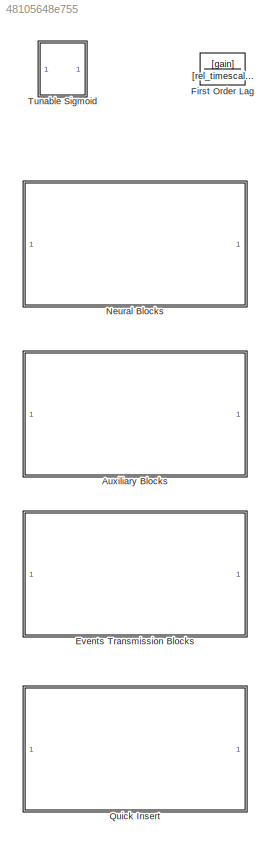
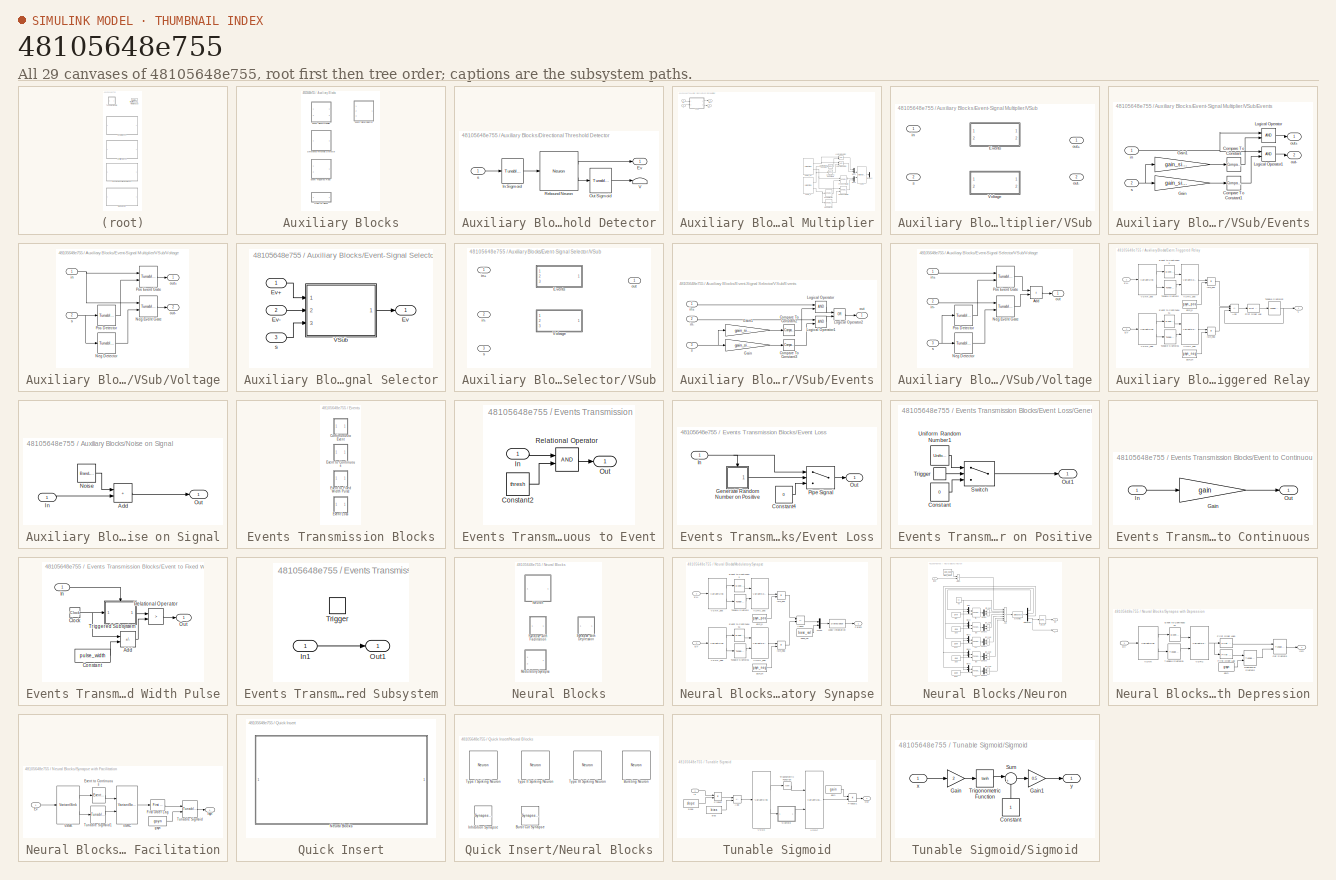
[diagram: thumbnail index - all 29 canvases of the model, root first then tree order]
MODEL slx_48105648e755
KIND library
CONFIG AbsTol = auto
CONFIG EnableMultiTasking = off
CONFIG FixedStep = auto
CONFIG MaxStep = auto
CONFIG MinStep = auto
CONFIG RelTol = 1e-3
CONFIG SampleTimeConstraint = Unconstrained
CONFIG SolverName = VariableStepAuto
CONFIG StartTime = 0.0
CONFIG StopTime = 10.0
BLOCK [SubSystem] Auxiliary Blocks
  Ports = []
  RequestExecContextInheritance = off
BLOCK [SubSystem] Auxiliary Blocks/Directional Threshold Detector
  Ports = [1, 1]
  RequestExecContextInheritance = off
BLOCK [Outport] Auxiliary Blocks/Directional Threshold Detector/Ev
BLOCK [Reference] Auxiliary Blocks/Directional Threshold Detector/In Sigmoid  REF=$bdroot/Tunable Sigmoid
  Ports = [1, 1]
  SourceBlock = $bdroot/Tunable Sigmoid
  SourceType = Tunable Sigmoid
BLOCK [Reference] Auxiliary Blocks/Directional Threshold Detector/Out Sigmoid  REF=$bdroot/Tunable Sigmoid
  Commented = on
  Ports = [1, 1]
  SourceBlock = $bdroot/Tunable Sigmoid
  SourceType = Tunable Sigmoid
BLOCK [Reference] Auxiliary Blocks/Directional Threshold Detector/Rebound Neuron  REF=$bdroot/Neural Blocks/Neuron
  Ports = [1, 2]
  SourceBlock = $bdroot/Neural Blocks/Neuron
  SourceType = Neuron
BLOCK [Terminator] Auxiliary Blocks/Directional Threshold Detector/V
BLOCK [Inport] Auxiliary Blocks/Directional Threshold Detector/s
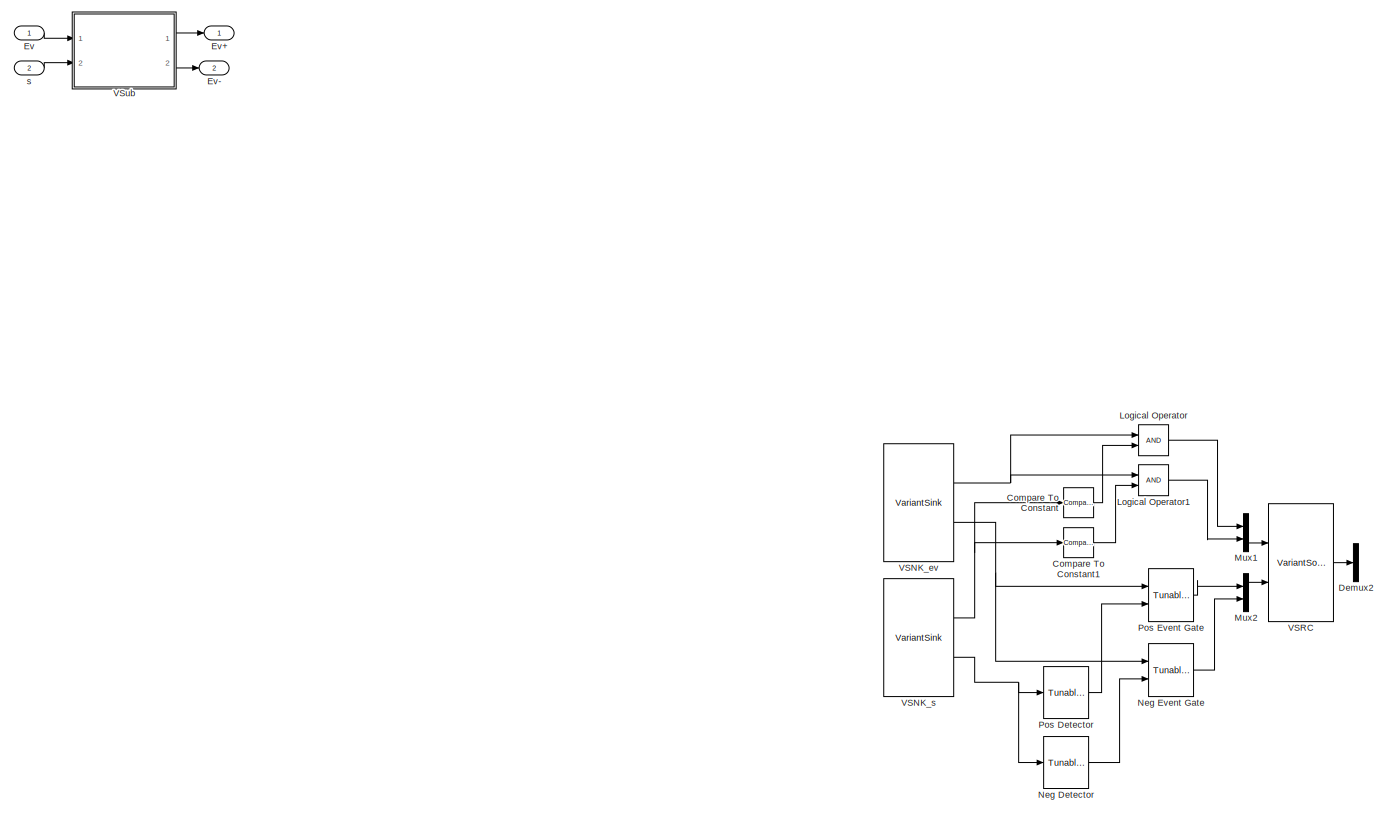
[diagram: Auxiliary Blocks/Event-Signal Multiplier - part 1/1, most of the canvas]
BLOCK [SubSystem] Auxiliary Blocks/Event-Signal Multiplier
  Ports = [2, 2]
  RequestExecContextInheritance = off
BLOCK [Reference] Auxiliary Blocks/Event-Signal Multiplier/Compare To Constant  REF=simulink/Logic and Bit
Operations/Compare
To Constant
  Commented = on
  Ports = [1, 1]
  SourceBlock = simulink/Logic and Bit\nOperations/Compare\nTo Constant
  SourceProductBaseCode = SL
  SourceType = Compare To Constant
BLOCK [Reference] Auxiliary Blocks/Event-Signal Multiplier/Compare To Constant1  REF=simulink/Logic and Bit
Operations/Compare
To Constant
  Commented = on
  Ports = [1, 1]
  SourceBlock = simulink/Logic and Bit\nOperations/Compare\nTo Constant
  SourceProductBaseCode = SL
  SourceType = Compare To Constant
BLOCK [Demux] Auxiliary Blocks/Event-Signal Multiplier/Demux2
  Commented = on
  Outputs = 2
  Ports = [1, 2]
BLOCK [Inport] Auxiliary Blocks/Event-Signal Multiplier/Ev
BLOCK [Outport] Auxiliary Blocks/Event-Signal Multiplier/Ev+
BLOCK [Outport] Auxiliary Blocks/Event-Signal Multiplier/Ev-
  Port = 2
BLOCK [Logic] Auxiliary Blocks/Event-Signal Multiplier/Logical Operator
  AllPortsSameDT = off
  Commented = on
  OutDataTypeStr = boolean
  Ports = [2, 1]
BLOCK [Logic] Auxiliary Blocks/Event-Signal Multiplier/Logical Operator1
  AllPortsSameDT = off
  Commented = on
  OutDataTypeStr = boolean
  Ports = [2, 1]
BLOCK [Mux] Auxiliary Blocks/Event-Signal Multiplier/Mux1
  Commented = on
  DisplayOption = bar
  Inputs = 2
  Ports = [2, 1]
BLOCK [Mux] Auxiliary Blocks/Event-Signal Multiplier/Mux2
  Commented = on
  DisplayOption = bar
  Inputs = 2
  Ports = [2, 1]
BLOCK [Reference] Auxiliary Blocks/Event-Signal Multiplier/Neg Detector  REF=$bdroot/Tunable Sigmoid
  Commented = on
  Ports = [1, 1]
  SourceBlock = $bdroot/Tunable Sigmoid
  SourceType = Tunable Sigmoid
BLOCK [Reference] Auxiliary Blocks/Event-Signal Multiplier/Neg Event Gate  REF=$bdroot/Tunable Sigmoid
  Commented = on
  Ports = [2, 1]
  SourceBlock = $bdroot/Tunable Sigmoid
  SourceType = Tunable Sigmoid
BLOCK [Reference] Auxiliary Blocks/Event-Signal Multiplier/Pos Detector  REF=$bdroot/Tunable Sigmoid
  Commented = on
  Ports = [1, 1]
  SourceBlock = $bdroot/Tunable Sigmoid
  SourceType = Tunable Sigmoid
BLOCK [Reference] Auxiliary Blocks/Event-Signal Multiplier/Pos Event Gate  REF=$bdroot/Tunable Sigmoid
  Commented = on
  Ports = [2, 1]
  SourceBlock = $bdroot/Tunable Sigmoid
  SourceType = Tunable Sigmoid
BLOCK [VariantSink] Auxiliary Blocks/Event-Signal Multiplier/VSNK_ev
  Commented = on
  LabelModeActiveChoice = Events
  Ports = [1, 2]
  ShowConditionOnBlock = on
  VariantControlMode = label
BLOCK [VariantSink] Auxiliary Blocks/Event-Signal Multiplier/VSNK_s
  Commented = on
  LabelModeActiveChoice = Events
  Ports = [1, 2]
  ShowConditionOnBlock = on
  VariantControlMode = label
BLOCK [VariantSource] Auxiliary Blocks/Event-Signal Multiplier/VSRC
  Commented = on
  LabelModeActiveChoice = Events
  Ports = [2, 1]
  ShowConditionOnBlock = on
  VariantControlMode = label
BLOCK [SubSystem] Auxiliary Blocks/Event-Signal Multiplier/VSub
  LabelModeActiveChoice = Events
  Ports = [2, 2]
  RequestExecContextInheritance = off
  Variant = on
  VariantControlMode = label
BLOCK [SubSystem] Auxiliary Blocks/Event-Signal Multiplier/VSub/Events
  Ports = [2, 2]
  RequestExecContextInheritance = off
  VariantControl = Events
BLOCK [Reference] Auxiliary Blocks/Event-Signal Multiplier/VSub/Events/Compare To Constant  REF=simulink/Logic and Bit
Operations/Compare
To Constant
  Ports = [1, 1]
  SourceBlock = simulink/Logic and Bit\nOperations/Compare\nTo Constant
  SourceProductBaseCode = SL
  SourceType = Compare To Constant
BLOCK [Reference] Auxiliary Blocks/Event-Signal Multiplier/VSub/Events/Compare To Constant1  REF=simulink/Logic and Bit
Operations/Compare
To Constant
  Ports = [1, 1]
  SourceBlock = simulink/Logic and Bit\nOperations/Compare\nTo Constant
  SourceProductBaseCode = SL
  SourceType = Compare To Constant
BLOCK [Gain] Auxiliary Blocks/Event-Signal Multiplier/VSub/Events/Gain
  Gain = gain_signal_neg
BLOCK [Gain] Auxiliary Blocks/Event-Signal Multiplier/VSub/Events/Gain1
  Gain = gain_signal_pos
BLOCK [Logic] Auxiliary Blocks/Event-Signal Multiplier/VSub/Events/Logical Operator
  AllPortsSameDT = off
  OutDataTypeStr = boolean
  Ports = [2, 1]
BLOCK [Logic] Auxiliary Blocks/Event-Signal Multiplier/VSub/Events/Logical Operator1
  AllPortsSameDT = off
  OutDataTypeStr = boolean
  Ports = [2, 1]
BLOCK [Inport] Auxiliary Blocks/Event-Signal Multiplier/VSub/Events/in
BLOCK [Outport] Auxiliary Blocks/Event-Signal Multiplier/VSub/Events/out+
BLOCK [Outport] Auxiliary Blocks/Event-Signal Multiplier/VSub/Events/out-
  Port = 2
BLOCK [Inport] Auxiliary Blocks/Event-Signal Multiplier/VSub/Events/s
  Port = 2
BLOCK [SubSystem] Auxiliary Blocks/Event-Signal Multiplier/VSub/Voltage
  Ports = [2, 2]
  RequestExecContextInheritance = off
  VariantControl = Voltage
BLOCK [Reference] Auxiliary Blocks/Event-Signal Multiplier/VSub/Voltage/Neg Detector  REF=$bdroot/Tunable Sigmoid
  Ports = [1, 1]
  SourceBlock = $bdroot/Tunable Sigmoid
  SourceType = Tunable Sigmoid
BLOCK [Reference] Auxiliary Blocks/Event-Signal Multiplier/VSub/Voltage/Neg Event Gate  REF=$bdroot/Tunable Sigmoid
  Ports = [2, 1]
  SourceBlock = $bdroot/Tunable Sigmoid
  SourceType = Tunable Sigmoid
BLOCK [Reference] Auxiliary Blocks/Event-Signal Multiplier/VSub/Voltage/Pos Detector  REF=$bdroot/Tunable Sigmoid
  Ports = [1, 1]
  SourceBlock = $bdroot/Tunable Sigmoid
  SourceType = Tunable Sigmoid
BLOCK [Reference] Auxiliary Blocks/Event-Signal Multiplier/VSub/Voltage/Pos Event Gate  REF=$bdroot/Tunable Sigmoid
  Ports = [2, 1]
  SourceBlock = $bdroot/Tunable Sigmoid
  SourceType = Tunable Sigmoid
BLOCK [Inport] Auxiliary Blocks/Event-Signal Multiplier/VSub/Voltage/in
BLOCK [Outport] Auxiliary Blocks/Event-Signal Multiplier/VSub/Voltage/out+
BLOCK [Outport] Auxiliary Blocks/Event-Signal Multiplier/VSub/Voltage/out-
  Port = 2
BLOCK [Inport] Auxiliary Blocks/Event-Signal Multiplier/VSub/Voltage/s
  Port = 2
BLOCK [Inport] Auxiliary Blocks/Event-Signal Multiplier/VSub/in
BLOCK [Outport] Auxiliary Blocks/Event-Signal Multiplier/VSub/out+
BLOCK [Outport] Auxiliary Blocks/Event-Signal Multiplier/VSub/out-
  Port = 2
BLOCK [Inport] Auxiliary Blocks/Event-Signal Multiplier/VSub/s
  Port = 2
BLOCK [Inport] Auxiliary Blocks/Event-Signal Multiplier/s
  Port = 2
BLOCK [SubSystem] Auxiliary Blocks/Event-Signal Selector
  Ports = [3, 1]
  RequestExecContextInheritance = off
BLOCK [Outport] Auxiliary Blocks/Event-Signal Selector/Ev
BLOCK [Inport] Auxiliary Blocks/Event-Signal Selector/Ev+
BLOCK [Inport] Auxiliary Blocks/Event-Signal Selector/Ev-
  Port = 2
BLOCK [SubSystem] Auxiliary Blocks/Event-Signal Selector/VSub
  LabelModeActiveChoice = Events
  Ports = [3, 1]
  RequestExecContextInheritance = off
  Variant = on
  VariantControlMode = label
BLOCK [SubSystem] Auxiliary Blocks/Event-Signal Selector/VSub/Events
  Ports = [3, 1]
  RequestExecContextInheritance = off
  VariantControl = Events
BLOCK [Reference] Auxiliary Blocks/Event-Signal Selector/VSub/Events/Compare To Constant2  REF=simulink/Logic and Bit
Operations/Compare
To Constant
  Ports = [1, 1]
  SourceBlock = simulink/Logic and Bit\nOperations/Compare\nTo Constant
  SourceProductBaseCode = SL
  SourceType = Compare To Constant
BLOCK [Reference] Auxiliary Blocks/Event-Signal Selector/VSub/Events/Compare To Constant3  REF=simulink/Logic and Bit
Operations/Compare
To Constant
  Ports = [1, 1]
  SourceBlock = simulink/Logic and Bit\nOperations/Compare\nTo Constant
  SourceProductBaseCode = SL
  SourceType = Compare To Constant
BLOCK [Gain] Auxiliary Blocks/Event-Signal Selector/VSub/Events/Gain
  Gain = gain_signal_neg
BLOCK [Gain] Auxiliary Blocks/Event-Signal Selector/VSub/Events/Gain1
  Gain = gain_signal_pos
BLOCK [Logic] Auxiliary Blocks/Event-Signal Selector/VSub/Events/Logical Operator
  AllPortsSameDT = off
  OutDataTypeStr = boolean
  Ports = [2, 1]
BLOCK [Logic] Auxiliary Blocks/Event-Signal Selector/VSub/Events/Logical Operator1
  AllPortsSameDT = off
  OutDataTypeStr = boolean
  Ports = [2, 1]
BLOCK [Logic] Auxiliary Blocks/Event-Signal Selector/VSub/Events/Logical Operator2
  AllPortsSameDT = off
  Operator = OR
  OutDataTypeStr = boolean
  Ports = [2, 1]
BLOCK [Inport] Auxiliary Blocks/Event-Signal Selector/VSub/Events/in+
BLOCK [Inport] Auxiliary Blocks/Event-Signal Selector/VSub/Events/in-
  Port = 2
BLOCK [Outport] Auxiliary Blocks/Event-Signal Selector/VSub/Events/out
BLOCK [Inport] Auxiliary Blocks/Event-Signal Selector/VSub/Events/s
  Port = 3
BLOCK [SubSystem] Auxiliary Blocks/Event-Signal Selector/VSub/Voltage
  Ports = [3, 1]
  RequestExecContextInheritance = off
  VariantControl = Voltage
BLOCK [Sum] Auxiliary Blocks/Event-Signal Selector/VSub/Voltage/Add
  IconShape = rectangular
  Ports = [2, 1]
BLOCK [Reference] Auxiliary Blocks/Event-Signal Selector/VSub/Voltage/Neg Detector  REF=$bdroot/Tunable Sigmoid
  Ports = [1, 1]
  SourceBlock = $bdroot/Tunable Sigmoid
  SourceType = Tunable Sigmoid
BLOCK [Reference] Auxiliary Blocks/Event-Signal Selector/VSub/Voltage/Neg Event Gate  REF=$bdroot/Tunable Sigmoid
  Ports = [2, 1]
  SourceBlock = $bdroot/Tunable Sigmoid
  SourceType = Tunable Sigmoid
BLOCK [Reference] Auxiliary Blocks/Event-Signal Selector/VSub/Voltage/Pos Detector  REF=$bdroot/Tunable Sigmoid
  Ports = [1, 1]
  SourceBlock = $bdroot/Tunable Sigmoid
  SourceType = Tunable Sigmoid
BLOCK [Reference] Auxiliary Blocks/Event-Signal Selector/VSub/Voltage/Pos Event Gate  REF=$bdroot/Tunable Sigmoid
  Ports = [2, 1]
  SourceBlock = $bdroot/Tunable Sigmoid
  SourceType = Tunable Sigmoid
BLOCK [Inport] Auxiliary Blocks/Event-Signal Selector/VSub/Voltage/in+
BLOCK [Inport] Auxiliary Blocks/Event-Signal Selector/VSub/Voltage/in-
  Port = 2
BLOCK [Outport] Auxiliary Blocks/Event-Signal Selector/VSub/Voltage/out
BLOCK [Inport] Auxiliary Blocks/Event-Signal Selector/VSub/Voltage/s
  Port = 3
BLOCK [Inport] Auxiliary Blocks/Event-Signal Selector/VSub/in+
BLOCK [Inport] Auxiliary Blocks/Event-Signal Selector/VSub/in-
  Port = 2
BLOCK [Outport] Auxiliary Blocks/Event-Signal Selector/VSub/out
BLOCK [Inport] Auxiliary Blocks/Event-Signal Selector/VSub/s
  Port = 3
BLOCK [Inport] Auxiliary Blocks/Event-Signal Selector/s
  Port = 3
BLOCK [SubSystem] Auxiliary Blocks/Event-Triggered Relay
  Ports = [2, 1]
  RequestExecContextInheritance = off
BLOCK [Sum] Auxiliary Blocks/Event-Triggered Relay/Add
  IconShape = rectangular
  Inputs = +-+
  Ports = [3, 1]
BLOCK [Inport] Auxiliary Blocks/Event-Triggered Relay/Ev+
BLOCK [Inport] Auxiliary Blocks/Event-Triggered Relay/Ev-
  Port = 2
BLOCK [Reference] Auxiliary Blocks/Event-Triggered Relay/Event to Continuous  REF=$bdroot/Events Transmission Blocks/Event to Continuous
  Ports = [1, 1]
  SourceBlock = $bdroot/Events Transmission Blocks/Event to Continuous
  SourceType = Event to Continuous
BLOCK [Reference] Auxiliary Blocks/Event-Triggered Relay/Event to Continuous1  REF=$bdroot/Events Transmission Blocks/Event to Continuous
  Ports = [1, 1]
  SourceBlock = $bdroot/Events Transmission Blocks/Event to Continuous
  SourceType = Event to Continuous
BLOCK [Reference] Auxiliary Blocks/Event-Triggered Relay/First Order Lag  REF=$bdroot/First Order Lag
  Ports = [1, 1]
  SourceBlock = $bdroot/First Order Lag
  SourceType = First Order Lag
BLOCK [Product] Auxiliary Blocks/Event-Triggered Relay/Isyn_neg
  Ports = [2, 1]
BLOCK [Product] Auxiliary Blocks/Event-Triggered Relay/Isyn_pos
  Ports = [2, 1]
BLOCK [Reference] Auxiliary Blocks/Event-Triggered Relay/Tunable Sigmoid  REF=$bdroot/Tunable Sigmoid
  Ports = [1, 1]
  SourceBlock = $bdroot/Tunable Sigmoid
  SourceType = Tunable Sigmoid
BLOCK [Reference] Auxiliary Blocks/Event-Triggered Relay/Tunable Sigmoid1  REF=$bdroot/Tunable Sigmoid
  Ports = [1, 1]
  SourceBlock = $bdroot/Tunable Sigmoid
  SourceType = Tunable Sigmoid
BLOCK [Reference] Auxiliary Blocks/Event-Triggered Relay/Tunable Sigmoid2  REF=$bdroot/Tunable Sigmoid
  Ports = [1, 1]
  SourceBlock = $bdroot/Tunable Sigmoid
  SourceType = Tunable Sigmoid
BLOCK [VariantSink] Auxiliary Blocks/Event-Triggered Relay/VSNK_neg
  LabelModeActiveChoice = Events
  Ports = [1, 2]
  ShowConditionOnBlock = on
  VariantControlMode = label
BLOCK [VariantSink] Auxiliary Blocks/Event-Triggered Relay/VSNK_pos
  LabelModeActiveChoice = Events
  Ports = [1, 2]
  ShowConditionOnBlock = on
  VariantControlMode = label
BLOCK [VariantSource] Auxiliary Blocks/Event-Triggered Relay/VSRC_neg
  LabelModeActiveChoice = Events
  Ports = [2, 1]
  ShowConditionOnBlock = on
  VariantControlMode = label
BLOCK [VariantSource] Auxiliary Blocks/Event-Triggered Relay/VSRC_pos
  LabelModeActiveChoice = Events
  Ports = [2, 1]
  ShowConditionOnBlock = on
  VariantControlMode = label
BLOCK [Constant] Auxiliary Blocks/Event-Triggered Relay/gsyn_m
  Value = gsyn_neg
BLOCK [Constant] Auxiliary Blocks/Event-Triggered Relay/gsyn_p
  Value = gsyn_pos
BLOCK [Outport] Auxiliary Blocks/Event-Triggered Relay/s
BLOCK [SubSystem] Auxiliary Blocks/Noise on Signal
  Ports = [1, 1]
  RequestExecContextInheritance = off
BLOCK [Sum] Auxiliary Blocks/Noise on Signal/Add
  IconShape = rectangular
  Ports = [2, 1]
BLOCK [Inport] Auxiliary Blocks/Noise on Signal/In
BLOCK [Reference] Auxiliary Blocks/Noise on Signal/Noise  REF=simulink/Sources/Band-Limited
White Noise
  Ports = [0, 1]
  SourceBlock = simulink/Sources/Band-Limited\nWhite Noise
  SourceProductBaseCode = SL
  SourceType = Band-Limited White Noise.
BLOCK [Outport] Auxiliary Blocks/Noise on Signal/Out
BLOCK [SubSystem] Events Transmission Blocks
  Ports = []
  RequestExecContextInheritance = off
BLOCK [SubSystem] Events Transmission Blocks/Continuous to Event
  Ports = [1, 1]
  RequestExecContextInheritance = off
BLOCK [Constant] Events Transmission Blocks/Continuous to Event/Constant2
  Value = thresh
BLOCK [Inport] Events Transmission Blocks/Continuous to Event/In
BLOCK [Outport] Events Transmission Blocks/Continuous to Event/Out
  OutDataTypeStr = boolean
BLOCK [RelationalOperator] Events Transmission Blocks/Continuous to Event/Relational Operator
  InputSameDT = off
  OutDataTypeStr = boolean
  Ports = [2, 1]
  RndMeth = Simplest
BLOCK [SubSystem] Events Transmission Blocks/Event Loss
  Ports = [1, 1]
  RequestExecContextInheritance = off
BLOCK [Constant] Events Transmission Blocks/Event Loss/Constant4
  OutDataTypeStr = Inherit: Inherit via back propagation
  Value = 0
BLOCK [SubSystem] Events Transmission Blocks/Event Loss/Generate Random Number on Positive
  Ports = [0, 1, 0, 1]
  RequestExecContextInheritance = off
  TreatAsAtomicUnit = on
BLOCK [Constant] Events Transmission Blocks/Event Loss/Generate Random Number on Positive/Constant
  Value = 0
BLOCK [Outport] Events Transmission Blocks/Event Loss/Generate Random Number on Positive/Out1
BLOCK [Switch] Events Transmission Blocks/Event Loss/Generate Random Number on Positive/Switch
  InputSameDT = off
  SaturateOnIntegerOverflow = off
BLOCK [TriggerPort] Events Transmission Blocks/Event Loss/Generate Random Number on Positive/Trigger
  Ports = [0, 1]
  ShowOutputPort = on
  StatesWhenEnabling = held
  TriggerType = either
  VariantControl = (inherit)
BLOCK [UniformRandomNumber] Events Transmission Blocks/Event Loss/Generate Random Number on Positive/Uniform Random Number1
  Minimum = 0
  Seed = seed_mem
BLOCK [Inport] Events Transmission Blocks/Event Loss/In
BLOCK [Outport] Events Transmission Blocks/Event Loss/Out
BLOCK [Switch] Events Transmission Blocks/Event Loss/Pipe Signal
  InputSameDT = off
  SaturateOnIntegerOverflow = off
  Threshold = loss_prob
BLOCK [SubSystem] Events Transmission Blocks/Event to Continuous
  Ports = [1, 1]
  RequestExecContextInheritance = off
BLOCK [Gain] Events Transmission Blocks/Event to Continuous/Gain
  Gain = gain
  OutDataTypeStr = double
BLOCK [Inport] Events Transmission Blocks/Event to Continuous/In
  OutDataTypeStr = boolean
BLOCK [Outport] Events Transmission Blocks/Event to Continuous/Out
  OutDataTypeStr = double
BLOCK [SubSystem] Events Transmission Blocks/Event to Fixed Width Pulse
  Ports = [1, 1]
  RequestExecContextInheritance = off
BLOCK [Sum] Events Transmission Blocks/Event to Fixed Width Pulse/Add
  IconShape = rectangular
  Inputs = +-
  Ports = [2, 1]
BLOCK [Clock] Events Transmission Blocks/Event to Fixed Width Pulse/Clock
BLOCK [Constant] Events Transmission Blocks/Event to Fixed Width Pulse/Constant
  Value = pulse_width
BLOCK [Inport] Events Transmission Blocks/Event to Fixed Width Pulse/In
  OutDataTypeStr = boolean
BLOCK [Outport] Events Transmission Blocks/Event to Fixed Width Pulse/Out
BLOCK [RelationalOperator] Events Transmission Blocks/Event to Fixed Width Pulse/Relational Operator
  InputSameDT = off
  Operator = >
  OutDataTypeStr = boolean
  Ports = [2, 1]
  RndMeth = Simplest
BLOCK [SubSystem] Events Transmission Blocks/Event to Fixed Width Pulse/Triggered Subsystem
  Ports = [1, 1, 0, 1]
  RequestExecContextInheritance = off
  TreatAsAtomicUnit = on
BLOCK [Inport] Events Transmission Blocks/Event to Fixed Width Pulse/Triggered Subsystem/In1
BLOCK [Outport] Events Transmission Blocks/Event to Fixed Width Pulse/Triggered Subsystem/Out1
  InitialOutput = -pulse_width
BLOCK [TriggerPort] Events Transmission Blocks/Event to Fixed Width Pulse/Triggered Subsystem/Trigger
  InitialTriggerSignalState = zero
  Ports = []
  StatesWhenEnabling = held
  VariantControl = (inherit)
BLOCK [TransferFcn] First Order Lag
  Denominator = [rel_timescale*timescale 1]
  Numerator = [gain]
BLOCK [SubSystem] Neural Blocks
  Ports = []
  RequestExecContextInheritance = off
BLOCK [SubSystem] Neural Blocks/Modulatory Synapse
  Ports = [2, 1]
  RequestExecContextInheritance = off
BLOCK [Sum] Neural Blocks/Modulatory Synapse/Add22
  IconShape = rectangular
  Inputs = +-
  Ports = [2, 1]
BLOCK [Inport] Neural Blocks/Modulatory Synapse/Ev+
BLOCK [Inport] Neural Blocks/Modulatory Synapse/Ev-
  Port = 2
BLOCK [Reference] Neural Blocks/Modulatory Synapse/Event to Continuous  REF=$bdroot/Events Transmission Blocks/Event to Continuous
  Ports = [1, 1]
  SourceBlock = $bdroot/Events Transmission Blocks/Event to Continuous
  SourceType = Event to Continuous
BLOCK [Reference] Neural Blocks/Modulatory Synapse/Event to Continuous1  REF=$bdroot/Events Transmission Blocks/Event to Continuous
  Ports = [1, 1]
  SourceBlock = $bdroot/Events Transmission Blocks/Event to Continuous
  SourceType = Event to Continuous
BLOCK [Product] Neural Blocks/Modulatory Synapse/Isyn_neg
  Commented = on
  Ports = [2, 1]
BLOCK [Product] Neural Blocks/Modulatory Synapse/Isyn_pos
  Commented = on
  Ports = [2, 1]
BLOCK [StateSpace] Neural Blocks/Modulatory Synapse/Leaky Integration
  A = -1/(timescale*rel_timescale)
  B = [1 1/(timescale*rel_timescale)]
  D = [0 0]
  InitialCondition = base_val
  ParameterTunability = Unconstrained
  Ports = [1, 1]
BLOCK [Mux] Neural Blocks/Modulatory Synapse/Mux3
  DisplayOption = bar
  Inputs = 2
  Ports = [2, 1]
BLOCK [Outport] Neural Blocks/Modulatory Synapse/Param
BLOCK [Reference] Neural Blocks/Modulatory Synapse/Tunable Sigmoid  REF=$bdroot/Tunable Sigmoid
  Ports = [1, 1]
  SourceBlock = $bdroot/Tunable Sigmoid
  SourceType = Tunable Sigmoid
BLOCK [Reference] Neural Blocks/Modulatory Synapse/Tunable Sigmoid1  REF=$bdroot/Tunable Sigmoid
  Ports = [1, 1]
  SourceBlock = $bdroot/Tunable Sigmoid
  SourceType = Tunable Sigmoid
BLOCK [VariantSink] Neural Blocks/Modulatory Synapse/VSNK_neg
  LabelModeActiveChoice = Events
  Ports = [1, 2]
  ShowConditionOnBlock = on
  VariantControlMode = label
BLOCK [VariantSink] Neural Blocks/Modulatory Synapse/VSNK_pos
  LabelModeActiveChoice = Events
  Ports = [1, 2]
  ShowConditionOnBlock = on
  VariantControlMode = label
BLOCK [VariantSource] Neural Blocks/Modulatory Synapse/VSRC_neg
  LabelModeActiveChoice = Events
  Ports = [2, 1]
  ShowConditionOnBlock = on
  VariantControlMode = label
BLOCK [VariantSource] Neural Blocks/Modulatory Synapse/VSRC_pos
  LabelModeActiveChoice = Events
  Ports = [2, 1]
  ShowConditionOnBlock = on
  VariantControlMode = label
BLOCK [Constant] Neural Blocks/Modulatory Synapse/base_val
  Value = base_val
BLOCK [Constant] Neural Blocks/Modulatory Synapse/gsyn_m
  Value = gsyn_neg
BLOCK [Constant] Neural Blocks/Modulatory Synapse/gsyn_p
  Value = gsyn_pos
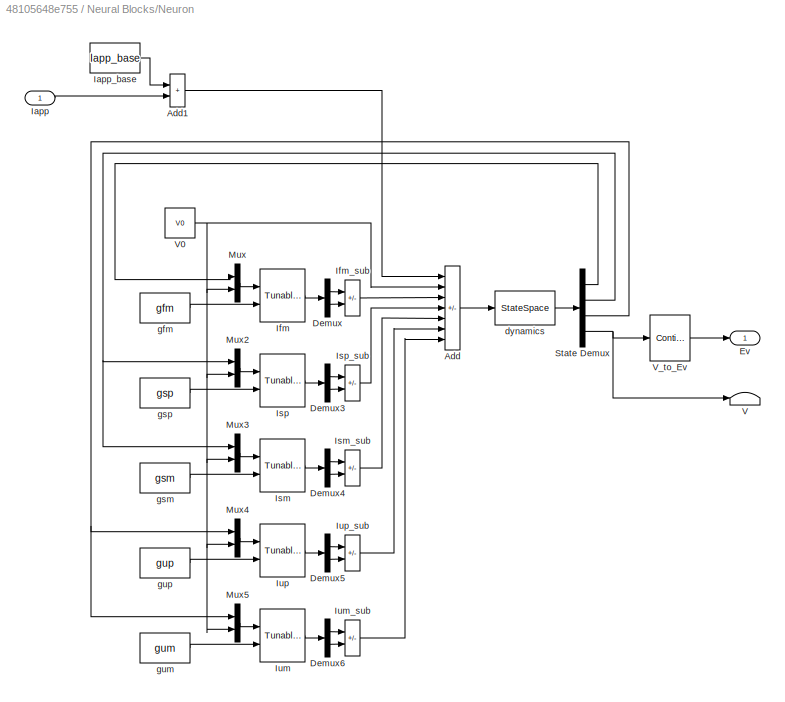
BLOCK [SubSystem] Neural Blocks/Neuron
  Ports = [1, 1]
  RequestExecContextInheritance = off
BLOCK [Sum] Neural Blocks/Neuron/Add
  IconShape = rectangular
  Inputs = +++-+-+
  Ports = [7, 1]
BLOCK [Sum] Neural Blocks/Neuron/Add1
  IconShape = rectangular
  Ports = [2, 1]
BLOCK [Demux] Neural Blocks/Neuron/Demux
  Outputs = 2
  Ports = [1, 2]
BLOCK [Demux] Neural Blocks/Neuron/Demux3
  Outputs = 2
  Ports = [1, 2]
BLOCK [Demux] Neural Blocks/Neuron/Demux4
  Outputs = 2
  Ports = [1, 2]
BLOCK [Demux] Neural Blocks/Neuron/Demux5
  Outputs = 2
  Ports = [1, 2]
BLOCK [Demux] Neural Blocks/Neuron/Demux6
  Outputs = 2
  Ports = [1, 2]
BLOCK [Outport] Neural Blocks/Neuron/Ev
BLOCK [Inport] Neural Blocks/Neuron/Iapp
BLOCK [Constant] Neural Blocks/Neuron/Iapp_base
  Value = Iapp_base
BLOCK [Reference] Neural Blocks/Neuron/Ifm  REF=$bdroot/Tunable Sigmoid
  Commented = on
  Ports = [2, 1]
  SourceBlock = $bdroot/Tunable Sigmoid
  SourceType = Tunable Sigmoid
BLOCK [Sum] Neural Blocks/Neuron/Ifm_sub
  Commented = on
  IconShape = rectangular
  Inputs = +-
  Ports = [2, 1]
BLOCK [Reference] Neural Blocks/Neuron/Ism  REF=$bdroot/Tunable Sigmoid
  Commented = on
  Ports = [2, 1]
  SourceBlock = $bdroot/Tunable Sigmoid
  SourceType = Tunable Sigmoid
BLOCK [Sum] Neural Blocks/Neuron/Ism_sub
  Commented = on
  IconShape = rectangular
  Inputs = +-
  Ports = [2, 1]
BLOCK [Reference] Neural Blocks/Neuron/Isp  REF=$bdroot/Tunable Sigmoid
  Commented = on
  Ports = [2, 1]
  SourceBlock = $bdroot/Tunable Sigmoid
  SourceType = Tunable Sigmoid
BLOCK [Sum] Neural Blocks/Neuron/Isp_sub
  Commented = on
  IconShape = rectangular
  Inputs = +-
  Ports = [2, 1]
BLOCK [Reference] Neural Blocks/Neuron/Ium  REF=$bdroot/Tunable Sigmoid
  Commented = on
  Ports = [2, 1]
  SourceBlock = $bdroot/Tunable Sigmoid
  SourceType = Tunable Sigmoid
BLOCK [Sum] Neural Blocks/Neuron/Ium_sub
  Commented = on
  IconShape = rectangular
  Inputs = +-
  Ports = [2, 1]
BLOCK [Reference] Neural Blocks/Neuron/Iup  REF=$bdroot/Tunable Sigmoid
  Commented = on
  Ports = [2, 1]
  SourceBlock = $bdroot/Tunable Sigmoid
  SourceType = Tunable Sigmoid
BLOCK [Sum] Neural Blocks/Neuron/Iup_sub
  Commented = on
  IconShape = rectangular
  Inputs = +-
  Ports = [2, 1]
BLOCK [Mux] Neural Blocks/Neuron/Mux
  DisplayOption = bar
  Inputs = 2
  Ports = [2, 1]
BLOCK [Mux] Neural Blocks/Neuron/Mux2
  DisplayOption = bar
  Inputs = 2
  Ports = [2, 1]
BLOCK [Mux] Neural Blocks/Neuron/Mux3
  DisplayOption = bar
  Inputs = 2
  Ports = [2, 1]
BLOCK [Mux] Neural Blocks/Neuron/Mux4
  DisplayOption = bar
  Inputs = 2
  Ports = [2, 1]
BLOCK [Mux] Neural Blocks/Neuron/Mux5
  DisplayOption = bar
  Inputs = 2
  Ports = [2, 1]
BLOCK [Demux] Neural Blocks/Neuron/State Demux
  NameLocation = top
  Ports = [1, 4]
BLOCK [Terminator] Neural Blocks/Neuron/V
BLOCK [Constant] Neural Blocks/Neuron/V0
  Value = V0
BLOCK [Reference] Neural Blocks/Neuron/V_to_Ev  REF=$bdroot/Events Transmission Blocks/Continuous to Event
  Ports = [1, 1]
  SourceBlock = $bdroot/Events Transmission Blocks/Continuous to Event
  SourceType = Continuous to Event
BLOCK [StateSpace] Neural Blocks/Neuron/dynamics
  A = [-1/rel_fast 0 0 1/rel_fast; 0 -1/rel_slow 0 1/rel_slow; 0 0 -1/rel_ultraslow 1/rel_ultraslow; 0 0 0 -1/rel_membrane]/(timescale)
  B = [0; 0; 0; 1/rel_membrane]/timescale
  C = [1 0 0 0; 0 1 0 0; 0 0 1 0; 0 0 0 1]
  D = [0; 0; 0; 0]
  InitialCondition = [V0; V0; V0; V0]
  Ports = [1, 1]
BLOCK [Constant] Neural Blocks/Neuron/gfm
  Commented = on
  Value = gfm
BLOCK [Constant] Neural Blocks/Neuron/gsm
  Commented = on
  Value = gsm
BLOCK [Constant] Neural Blocks/Neuron/gsp
  Commented = on
  Value = gsp
BLOCK [Constant] Neural Blocks/Neuron/gum
  Commented = on
  Value = gum
BLOCK [Constant] Neural Blocks/Neuron/gup
  Commented = on
  Value = gup
BLOCK [SubSystem] Neural Blocks/Synapse with Depression
  Ports = [1, 1]
  RequestExecContextInheritance = off
BLOCK [Reference] Neural Blocks/Synapse with Depression/Depression Sigmoid  REF=$bdroot/Tunable Sigmoid
  Ports = [2, 1]
  SourceBlock = $bdroot/Tunable Sigmoid
  SourceType = Tunable Sigmoid
BLOCK [Inport] Neural Blocks/Synapse with Depression/Ev
BLOCK [Reference] Neural Blocks/Synapse with Depression/Event to Continuous1  REF=$bdroot/Events Transmission Blocks/Event to Continuous
  Ports = [1, 1]
  SourceBlock = $bdroot/Events Transmission Blocks/Event to Continuous
  SourceType = Event to Continuous
BLOCK [Reference] Neural Blocks/Synapse with Depression/First Order Lag  REF=$bdroot/First Order Lag
  Ports = [1, 1]
  SourceBlock = $bdroot/First Order Lag
  SourceType = First Order Lag
BLOCK [Reference] Neural Blocks/Synapse with Depression/First Order Lag1  REF=$bdroot/First Order Lag
  Ports = [1, 1]
  SourceBlock = $bdroot/First Order Lag
  SourceType = First Order Lag
BLOCK [Outport] Neural Blocks/Synapse with Depression/Isyn
BLOCK [Reference] Neural Blocks/Synapse with Depression/Out Sigmoid  REF=$bdroot/Tunable Sigmoid
  Ports = [2, 1]
  SourceBlock = $bdroot/Tunable Sigmoid
  SourceType = Tunable Sigmoid
BLOCK [Reference] Neural Blocks/Synapse with Depression/Tunable Sigmoid1  REF=$bdroot/Tunable Sigmoid
  Ports = [1, 1]
  SourceBlock = $bdroot/Tunable Sigmoid
  SourceType = Tunable Sigmoid
BLOCK [VariantSink] Neural Blocks/Synapse with Depression/VSNK
  LabelModeActiveChoice = Events
  Ports = [1, 2]
  ShowConditionOnBlock = on
  VariantControlMode = label
BLOCK [VariantSource] Neural Blocks/Synapse with Depression/VSRC
  LabelModeActiveChoice = Events
  Ports = [2, 1]
  ShowConditionOnBlock = on
  VariantControlMode = label
BLOCK [Constant] Neural Blocks/Synapse with Depression/gsyn
  Value = gsyn
BLOCK [SubSystem] Neural Blocks/Synapse with Facilitation
  Ports = [1, 1]
  RequestExecContextInheritance = off
BLOCK [Inport] Neural Blocks/Synapse with Facilitation/Ev
BLOCK [Reference] Neural Blocks/Synapse with Facilitation/Event to Continuous  REF=$bdroot/Events Transmission Blocks/Event to Continuous
  Ports = [1, 1]
  SourceBlock = $bdroot/Events Transmission Blocks/Event to Continuous
  SourceType = Event to Continuous
BLOCK [Reference] Neural Blocks/Synapse with Facilitation/First Order Lag  REF=$bdroot/First Order Lag
  Ports = [1, 1]
  SourceBlock = $bdroot/First Order Lag
  SourceType = First Order Lag
BLOCK [Outport] Neural Blocks/Synapse with Facilitation/Isyn
BLOCK [Reference] Neural Blocks/Synapse with Facilitation/Tunable Sigmoid  REF=$bdroot/Tunable Sigmoid
  Ports = [2, 1]
  SourceBlock = $bdroot/Tunable Sigmoid
  SourceType = Tunable Sigmoid
BLOCK [Reference] Neural Blocks/Synapse with Facilitation/Tunable Sigmoid1  REF=$bdroot/Tunable Sigmoid
  Ports = [1, 1]
  SourceBlock = $bdroot/Tunable Sigmoid
  SourceType = Tunable Sigmoid
BLOCK [VariantSink] Neural Blocks/Synapse with Facilitation/VSNK
  LabelModeActiveChoice = Events
  Ports = [1, 2]
  ShowConditionOnBlock = on
  VariantControlMode = label
BLOCK [VariantSource] Neural Blocks/Synapse with Facilitation/VSRC
  LabelModeActiveChoice = Events
  Ports = [2, 1]
  ShowConditionOnBlock = on
  VariantControlMode = label
BLOCK [Constant] Neural Blocks/Synapse with Facilitation/gsyn
  Value = gsyn
BLOCK [SubSystem] Quick Insert
  Ports = []
  RequestExecContextInheritance = off
BLOCK [SubSystem] Quick Insert/Neural Blocks
  Ports = []
  RequestExecContextInheritance = off
BLOCK [Reference] Quick Insert/Neural Blocks/Burst Cut Synapse  REF=$bdroot/Neural Blocks/Synapse with Depression
  Ports = [1, 1]
  SourceBlock = $bdroot/Neural Blocks/Synapse with Depression
  SourceType = Synapse with Depression
BLOCK [Reference] Quick Insert/Neural Blocks/Bursting Neuron  REF=$bdroot/Neural Blocks/Neuron
  Ports = [1, 1]
  SourceBlock = $bdroot/Neural Blocks/Neuron
  SourceType = Neuron
BLOCK [Reference] Quick Insert/Neural Blocks/Inhibition Synapse  REF=$bdroot/Neural Blocks/Synapse with Facilitation
  Ports = [1, 1]
  SourceBlock = $bdroot/Neural Blocks/Synapse with Facilitation
  SourceType = Synapse with Facilitation
BLOCK [Reference] Quick Insert/Neural Blocks/Type I Spiking Neuron  REF=$bdroot/Neural Blocks/Neuron
  Ports = [1, 1]
  SourceBlock = $bdroot/Neural Blocks/Neuron
  SourceType = Neuron
BLOCK [Reference] Quick Insert/Neural Blocks/Type II Spiking Neuron  REF=$bdroot/Neural Blocks/Neuron
  Ports = [1, 1]
  SourceBlock = $bdroot/Neural Blocks/Neuron
  SourceType = Neuron
BLOCK [Reference] Quick Insert/Neural Blocks/Type III Spiking Neuron  REF=$bdroot/Neural Blocks/Neuron
  Ports = [1, 1]
  SourceBlock = $bdroot/Neural Blocks/Neuron
  SourceType = Neuron
BLOCK [SubSystem] Tunable Sigmoid
  Ports = [1, 1]
  RequestExecContextInheritance = off
BLOCK [Sum] Tunable Sigmoid/Add
  IconShape = rectangular
  Inputs = +-
  Ports = [2, 1]
BLOCK [Inport] Tunable Sigmoid/In
BLOCK [Outport] Tunable Sigmoid/Out
BLOCK [Product] Tunable Sigmoid/Product
  Ports = [2, 1]
BLOCK [Product] Tunable Sigmoid/Product1
  Ports = [2, 1]
BLOCK [SubSystem] Tunable Sigmoid/Sigmoid
  Ports = [1, 1]
  RequestExecContextInheritance = off
BLOCK [Constant] Tunable Sigmoid/Sigmoid/Constant
  NameLocation = right
BLOCK [Gain] Tunable Sigmoid/Sigmoid/Gain
  Gain = 2
BLOCK [Gain] Tunable Sigmoid/Sigmoid/Gain1
  Gain = 0.5
BLOCK [Sum] Tunable Sigmoid/Sigmoid/Sum
  Inputs = |++
  Ports = [2, 1]
BLOCK [Trigonometry] Tunable Sigmoid/Sigmoid/Trigonometric Function
  Operator = tanh
  Ports = [1, 1]
BLOCK [Inport] Tunable Sigmoid/Sigmoid/x
BLOCK [Outport] Tunable Sigmoid/Sigmoid/y
BLOCK [Trigonometry] Tunable Sigmoid/Trigonometric Function
  Operator = tanh
  Ports = [1, 1]
BLOCK [VariantSink] Tunable Sigmoid/VSNK
  LabelModeActiveChoice = Sigmoid
  Ports = [1, 2]
  ShowConditionOnBlock = on
  VariantControlMode = label
BLOCK [VariantSource] Tunable Sigmoid/VSRC
  LabelModeActiveChoice = Sigmoid
  Ports = [2, 1]
  ShowConditionOnBlock = on
  VariantControlMode = label
BLOCK [Constant] Tunable Sigmoid/bias
  Value = bias
BLOCK [Constant] Tunable Sigmoid/gain
  Value = gain
BLOCK [Constant] Tunable Sigmoid/slope
  Value = slope
LINE Auxiliary Blocks/Noise on Signal/Add:1 -> Auxiliary Blocks/Noise on Signal/Out:1
LINE Auxiliary Blocks/Noise on Signal/In:1 -> Auxiliary Blocks/Noise on Signal/Add:2
LINE Auxiliary Blocks/Noise on Signal/Noise:1 -> Auxiliary Blocks/Noise on Signal/Add:1
LINE Events Transmission Blocks/Continuous to Event/Constant2:1 -> Events Transmission Blocks/Continuous to Event/Relational Operator:2
LINE Events Transmission Blocks/Continuous to Event/In:1 -> Events Transmission Blocks/Continuous to Event/Relational Operator:1
LINE Events Transmission Blocks/Continuous to Event/Relational Operator:1 -> Events Transmission Blocks/Continuous to Event/Out:1
LINE Events Transmission Blocks/Event Loss/Constant4:1 -> Events Transmission Blocks/Event Loss/Pipe Signal:3
LINE Events Transmission Blocks/Event Loss/Generate Random Number on Positive/Constant:1 -> Events Transmission Blocks/Event Loss/Generate Random Number on Positive/Switch:3
LINE Events Transmission Blocks/Event Loss/Generate Random Number on Positive/Switch:1 -> Events Transmission Blocks/Event Loss/Generate Random Number on Positive/Out1:1
LINE Events Transmission Blocks/Event Loss/Generate Random Number on Positive/Trigger:1 -> Events Transmission Blocks/Event Loss/Generate Random Number on Positive/Switch:2
LINE Events Transmission Blocks/Event Loss/Generate Random Number on Positive/Uniform Random Number1:1 -> Events Transmission Blocks/Event Loss/Generate Random Number on Positive/Switch:1
LINE Events Transmission Blocks/Event Loss/Generate Random Number on Positive:1 -> Events Transmission Blocks/Event Loss/Pipe Signal:2
NET Events Transmission Blocks/Event Loss/In:1 -> Events Transmission Blocks/Event Loss/Generate Random Number on Positive:trigger, Events Transmission Blocks/Event Loss/Pipe Signal:1
LINE Events Transmission Blocks/Event Loss/Pipe Signal:1 -> Events Transmission Blocks/Event Loss/Out:1
LINE Events Transmission Blocks/Event to Continuous/Gain:1 -> Events Transmission Blocks/Event to Continuous/Out:1
LINE Events Transmission Blocks/Event to Continuous/In:1 -> Events Transmission Blocks/Event to Continuous/Gain:1
LINE Events Transmission Blocks/Event to Fixed Width Pulse/Add:1 -> Events Transmission Blocks/Event to Fixed Width Pulse/Relational Operator:2
NET Events Transmission Blocks/Event to Fixed Width Pulse/Clock:1 -> Events Transmission Blocks/Event to Fixed Width Pulse/Add:1, Events Transmission Blocks/Event to Fixed Width Pulse/Triggered Subsystem:1
LINE Events Transmission Blocks/Event to Fixed Width Pulse/Constant:1 -> Events Transmission Blocks/Event to Fixed Width Pulse/Add:2
LINE Events Transmission Blocks/Event to Fixed Width Pulse/In:1 -> Events Transmission Blocks/Event to Fixed Width Pulse/Triggered Subsystem:trigger
LINE Events Transmission Blocks/Event to Fixed Width Pulse/Relational Operator:1 -> Events Transmission Blocks/Event to Fixed Width Pulse/Out:1
LINE Events Transmission Blocks/Event to Fixed Width Pulse/Triggered Subsystem/In1:1 -> Events Transmission Blocks/Event to Fixed Width Pulse/Triggered Subsystem/Out1:1
LINE Events Transmission Blocks/Event to Fixed Width Pulse/Triggered Subsystem:1 -> Events Transmission Blocks/Event to Fixed Width Pulse/Relational Operator:1
note: NET lines group one-source signal fan-out (src -> all destinations, sorted); 1:1 wires keep LINE
